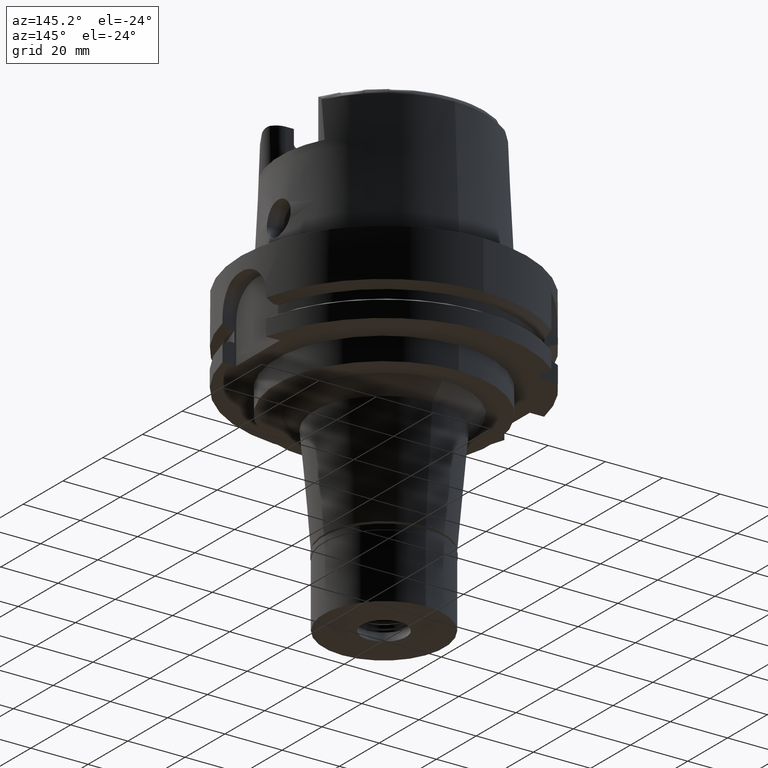
[diagram: clean part render]
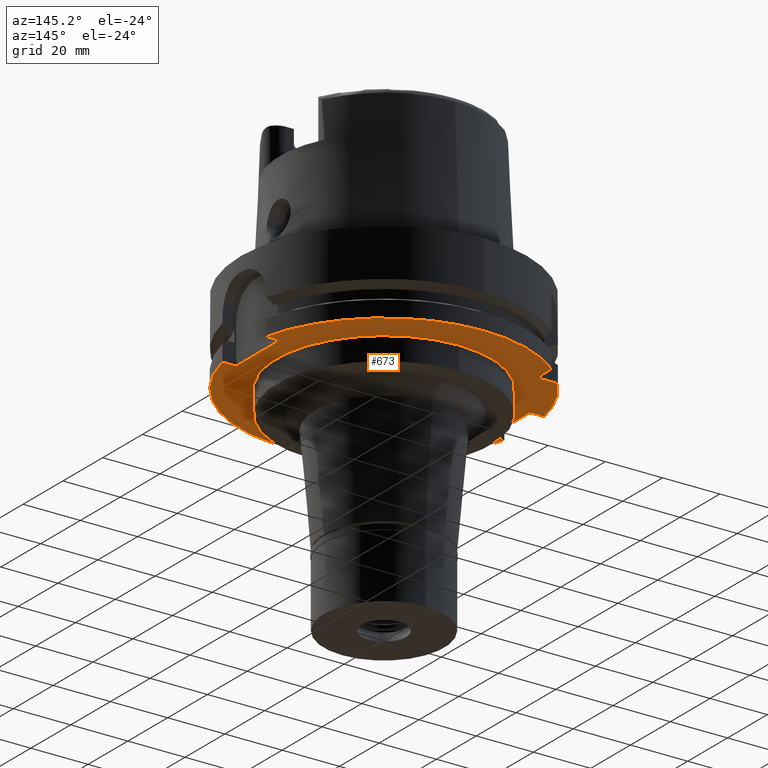
[diagram: same view with one face highlighted and labeled with its STEP entity id]
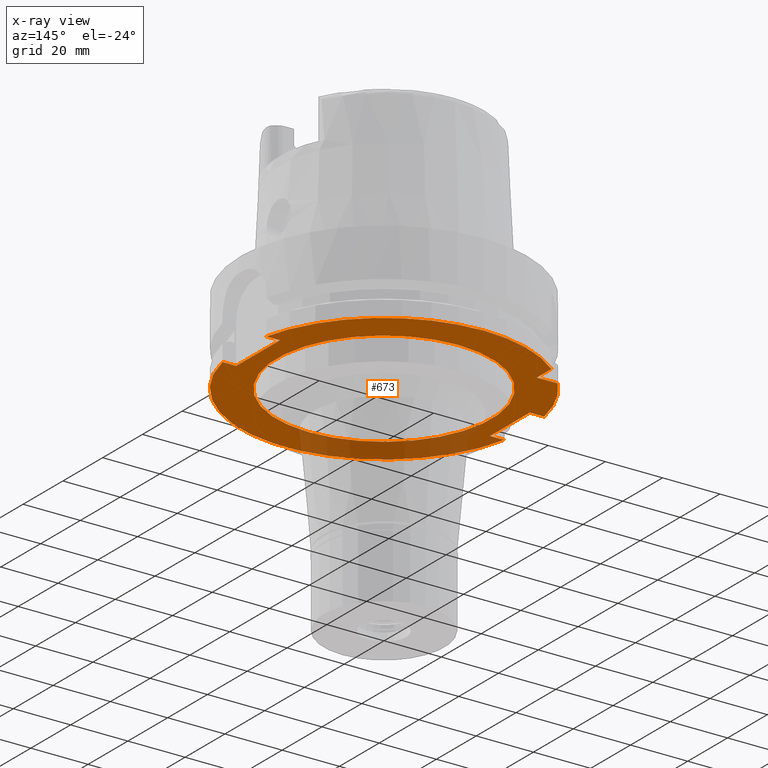
[diagram: x-ray of the same camera — body ghosted, the highlighted face saturated]
A machine part, auxiliary view. The second image highlights one B-rep face of the part: STEP entity #673.
The next image is the same camera in x-ray: the body ghosted, the highlighted face saturated — about 21% of this face is hidden behind the body in this view.
In plain terms, the highlighted planar face has unit normal (0, 0, 1).
Its self-contained STEP definition (entity closure, byte-faithful):
#51 = CARTESIAN_POINT ( 'NONE',  ( 48.77499359303000404, -11.00000000000000000, -29.00000000000000000 ) ) ;
#269 = AXIS2_PLACEMENT_3D ( 'NONE', #2829, #693, #1594 ) ;
#273 = PLANE ( 'NONE',  #3957 ) ;
#299 = FACE_OUTER_BOUND ( 'NONE', #4570, .T. ) ;
#395 = DIRECTION ( 'NONE',  ( 0.0000000000000000000, 0.0000000000000000000, 1.000000000000000000 ) ) ;
#451 = CIRCLE ( 'NONE', #269, 37.50000000000000000 ) ;
#490 = ORIENTED_EDGE ( 'NONE', *, *, #5322, .F. ) ;
#510 = VERTEX_POINT ( 'NONE', #5427 ) ;
#530 = EDGE_CURVE ( 'NONE', #4006, #4961, #1073, .T. ) ;
#553 = CARTESIAN_POINT ( 'NONE',  ( -44.00000000000000000, 10.00000000000000000, -29.00000000000000000 ) ) ;
#656 = CARTESIAN_POINT ( 'NONE',  ( -44.00000000000000000, -10.00000000000000000, -29.00000000000000000 ) ) ;
#673 = ADVANCED_FACE ( 'NONE', ( #299, #2915 ), #273, .F. ) ;
#693 = DIRECTION ( 'NONE',  ( 0.0000000000000000000, 0.0000000000000000000, -1.000000000000000000 ) ) ;
#697 = CARTESIAN_POINT ( 'NONE',  ( -44.00000000000000000, -10.00000000000000000, -29.00000000000000000 ) ) ;
#701 = EDGE_CURVE ( 'NONE', #3279, #1275, #451, .T. ) ;
#713 = LINE ( 'NONE', #656, #4839 ) ;
#763 = EDGE_CURVE ( 'NONE', #2494, #4006, #3426, .T. ) ;
#827 = LINE ( 'NONE', #2539, #1915 ) ;
#855 = DIRECTION ( 'NONE',  ( 1.000000000000000000, 1.711257052401000108E-14, 0.0000000000000000000 ) ) ;
#957 = VERTEX_POINT ( 'NONE', #5046 ) ;
#1073 = CIRCLE ( 'NONE', #1349, 50.00000000000000000 ) ;
#1086 = CARTESIAN_POINT ( 'NONE',  ( -31.50000000000000000, 31.50000000000000000, -29.00000000000000000 ) ) ;
#1090 = LINE ( 'NONE', #4980, #3594 ) ;
#1104 = VECTOR ( 'NONE', #4105, 1000.000000000000000 ) ;
#1139 = EDGE_CURVE ( 'NONE', #3569, #4961, #1090, .T. ) ;
#1166 = CARTESIAN_POINT ( 'NONE',  ( 0.0000000000000000000, 0.0000000000000000000, -29.00000000000000000 ) ) ;
#1187 = DIRECTION ( 'NONE',  ( 0.0000000000000000000, 0.0000000000000000000, 1.000000000000000000 ) ) ;
#1239 = ORIENTED_EDGE ( 'NONE', *, *, #3534, .T. ) ;
#1275 = VERTEX_POINT ( 'NONE', #4258 ) ;
#1336 = DIRECTION ( 'NONE',  ( 0.0000000000000000000, 0.0000000000000000000, 1.000000000000000000 ) ) ;
#1349 = AXIS2_PLACEMENT_3D ( 'NONE', #2522, #2491, #5025 ) ;
#1376 = VERTEX_POINT ( 'NONE', #4802 ) ;
#1576 = AXIS2_PLACEMENT_3D ( 'NONE', #1166, #395, #2919 ) ;
#1594 = DIRECTION ( 'NONE',  ( 0.0000000000000000000, 1.000000000000000000, 0.0000000000000000000 ) ) ;
#1703 = VECTOR ( 'NONE', #2606, 1000.000000000000000 ) ;
#1753 = CARTESIAN_POINT ( 'NONE',  ( -31.50000000000000000, 38.82975663071000128, -29.00000000000000000 ) ) ;
#1757 = CIRCLE ( 'NONE', #1576, 50.00000000000000711 ) ;
#1848 = ORIENTED_EDGE ( 'NONE', *, *, #763, .F. ) ;
#1911 = ORIENTED_EDGE ( 'NONE', *, *, #3792, .F. ) ;
#1915 = VECTOR ( 'NONE', #855, 1000.000000000000000 ) ;
#1935 = VERTEX_POINT ( 'NONE', #2864 ) ;
#2010 = VECTOR ( 'NONE', #2860, 1000.000000000000000 ) ;
#2013 = VECTOR ( 'NONE', #4692, 1000.000000000000000 ) ;
#2021 = VECTOR ( 'NONE', #4824, 1000.000000000000000 ) ;
#2068 = DIRECTION ( 'NONE',  ( 1.000000000000000000, 0.0000000000000000000, 0.0000000000000000000 ) ) ;
#2237 = LINE ( 'NONE', #553, #2021 ) ;
#2243 = VERTEX_POINT ( 'NONE', #3460 ) ;
#2255 = DIRECTION ( 'NONE',  ( 0.0000000000000000000, -1.000000000000000000, 0.0000000000000000000 ) ) ;
#2383 = CARTESIAN_POINT ( 'NONE',  ( 44.00000000000000000, 11.00000000000000000, -29.00000000000000000 ) ) ;
#2385 = DIRECTION ( 'NONE',  ( 4.798503851105999980E-14, 1.000000000000000000, 0.0000000000000000000 ) ) ;
#2410 = ORIENTED_EDGE ( 'NONE', *, *, #4184, .T. ) ;
#2491 = DIRECTION ( 'NONE',  ( 0.0000000000000000000, 0.0000000000000000000, 1.000000000000000000 ) ) ;
#2494 = VERTEX_POINT ( 'NONE', #3040 ) ;
#2522 = CARTESIAN_POINT ( 'NONE',  ( 0.0000000000000000000, 0.0000000000000000000, -29.00000000000000000 ) ) ;
#2539 = CARTESIAN_POINT ( 'NONE',  ( 44.00000000000000000, -11.00000000000000000, -29.00000000000000000 ) ) ;
#2549 = CIRCLE ( 'NONE', #3356, 50.00000000000000000 ) ;
#2555 = VERTEX_POINT ( 'NONE', #51 ) ;
#2606 = DIRECTION ( 'NONE',  ( 1.000000000000000000, -1.785659532940000023E-14, 0.0000000000000000000 ) ) ;
#2738 = AXIS2_PLACEMENT_3D ( 'NONE', #4558, #5500, #4966 ) ;
#2829 = CARTESIAN_POINT ( 'NONE',  ( 0.0000000000000000000, 0.0000000000000000000, -29.00000000000000000 ) ) ;
#2842 = ORIENTED_EDGE ( 'NONE', *, *, #3581, .T. ) ;
#2860 = DIRECTION ( 'NONE',  ( 0.0000000000000000000, 1.000000000000000000, 0.0000000000000000000 ) ) ;
#2864 = CARTESIAN_POINT ( 'NONE',  ( 44.00000000000000000, -11.00000000000000000, -29.00000000000000000 ) ) ;
#2915 = FACE_BOUND ( 'NONE', #2949, .T. ) ;
#2919 = DIRECTION ( 'NONE',  ( -0.7765951326141738997, 0.6299999999999789102, 0.0000000000000000000 ) ) ;
#2949 = EDGE_LOOP ( 'NONE', ( #4356, #1911 ) ) ;
#2963 = CARTESIAN_POINT ( 'NONE',  ( -31.50000000000000000, 31.50000000000000000, -29.00000000000000000 ) ) ;
#3040 = CARTESIAN_POINT ( 'NONE',  ( 44.00000000000000000, 11.00000000000000000, -29.00000000000000000 ) ) ;
#3076 = CARTESIAN_POINT ( 'NONE',  ( 0.0000000000000000000, 37.50000000000000000, -29.00000000000000000 ) ) ;
#3090 = CARTESIAN_POINT ( 'NONE',  ( 44.00000000000000000, 11.00000000000000000, -29.00000000000000000 ) ) ;
#3258 = LINE ( 'NONE', #697, #2010 ) ;
#3259 = VERTEX_POINT ( 'NONE', #3804 ) ;
#3279 = VERTEX_POINT ( 'NONE', #3076 ) ;
#3356 = AXIS2_PLACEMENT_3D ( 'NONE', #4004, #1336, #2255 ) ;
#3378 = LINE ( 'NONE', #2963, #2013 ) ;
#3426 = LINE ( 'NONE', #3090, #1703 ) ;
#3460 = CARTESIAN_POINT ( 'NONE',  ( -48.98979485565999425, -10.00000000000000000, -29.00000000000000000 ) ) ;
#3534 = EDGE_CURVE ( 'NONE', #957, #510, #3258, .T. ) ;
#3569 = VERTEX_POINT ( 'NONE', #1086 ) ;
#3581 = EDGE_CURVE ( 'NONE', #2494, #1935, #4532, .T. ) ;
#3594 = VECTOR ( 'NONE', #2385, 1000.000000000000000 ) ;
#3695 = ORIENTED_EDGE ( 'NONE', *, *, #1139, .T. ) ;
#3766 = ORIENTED_EDGE ( 'NONE', *, *, #4638, .T. ) ;
#3792 = EDGE_CURVE ( 'NONE', #1275, #3279, #4642, .T. ) ;
#3804 = CARTESIAN_POINT ( 'NONE',  ( -38.82975663071000128, 31.50000000000000000, -29.00000000000000000 ) ) ;
#3957 = AXIS2_PLACEMENT_3D ( 'NONE', #5082, #1187, #2068 ) ;
#4004 = CARTESIAN_POINT ( 'NONE',  ( 0.0000000000000000000, 0.0000000000000000000, -29.00000000000000000 ) ) ;
#4006 = VERTEX_POINT ( 'NONE', #4647 ) ;
#4105 = DIRECTION ( 'NONE',  ( 0.0000000000000000000, -1.000000000000000000, 0.0000000000000000000 ) ) ;
#4184 = EDGE_CURVE ( 'NONE', #510, #1376, #2237, .T. ) ;
#4258 = CARTESIAN_POINT ( 'NONE',  ( 0.0000000000000000000, -37.50000000000000000, -29.00000000000000000 ) ) ;
#4356 = ORIENTED_EDGE ( 'NONE', *, *, #701, .F. ) ;
#4361 = ORIENTED_EDGE ( 'NONE', *, *, #5548, .F. ) ;
#4389 = ORIENTED_EDGE ( 'NONE', *, *, #4909, .F. ) ;
#4531 = EDGE_CURVE ( 'NONE', #957, #2243, #713, .T. ) ;
#4532 = LINE ( 'NONE', #2383, #1104 ) ;
#4558 = CARTESIAN_POINT ( 'NONE',  ( 0.0000000000000000000, 0.0000000000000000000, -29.00000000000000000 ) ) ;
#4570 = EDGE_LOOP ( 'NONE', ( #5154, #1848, #2842, #3766, #4389, #4857, #1239, #2410, #4361, #490, #3695 ) ) ;
#4582 = DIRECTION ( 'NONE',  ( -1.000000000000000000, -4.627973610177000155E-14, 0.0000000000000000000 ) ) ;
#4638 = EDGE_CURVE ( 'NONE', #1935, #2555, #827, .T. ) ;
#4642 = CIRCLE ( 'NONE', #2738, 37.50000000000000000 ) ;
#4647 = CARTESIAN_POINT ( 'NONE',  ( 48.77499359303000404, 11.00000000000000000, -29.00000000000000000 ) ) ;
#4692 = DIRECTION ( 'NONE',  ( -1.000000000000000000, -4.798503851105999980E-14, 0.0000000000000000000 ) ) ;
#4802 = CARTESIAN_POINT ( 'NONE',  ( -48.98979485565999425, 10.00000000000000000, -29.00000000000000000 ) ) ;
#4824 = DIRECTION ( 'NONE',  ( -1.000000000000000000, 4.627973610177000155E-14, 0.0000000000000000000 ) ) ;
#4839 = VECTOR ( 'NONE', #4582, 1000.000000000000000 ) ;
#4857 = ORIENTED_EDGE ( 'NONE', *, *, #4531, .F. ) ;
#4909 = EDGE_CURVE ( 'NONE', #2243, #2555, #2549, .T. ) ;
#4961 = VERTEX_POINT ( 'NONE', #1753 ) ;
#4966 = DIRECTION ( 'NONE',  ( 0.0000000000000000000, -1.000000000000000000, 0.0000000000000000000 ) ) ;
#4980 = CARTESIAN_POINT ( 'NONE',  ( -31.50000000000000000, 31.50000000000000000, -29.00000000000000000 ) ) ;
#5025 = DIRECTION ( 'NONE',  ( 0.0000000000000000000, 1.000000000000000000, 0.0000000000000000000 ) ) ;
#5046 = CARTESIAN_POINT ( 'NONE',  ( -44.00000000000000000, -10.00000000000000000, -29.00000000000000000 ) ) ;
#5082 = CARTESIAN_POINT ( 'NONE',  ( 0.0000000000000000000, 0.0000000000000000000, -29.00000000000000000 ) ) ;
#5154 = ORIENTED_EDGE ( 'NONE', *, *, #530, .F. ) ;
#5322 = EDGE_CURVE ( 'NONE', #3569, #3259, #3378, .T. ) ;
#5427 = CARTESIAN_POINT ( 'NONE',  ( -44.00000000000000000, 10.00000000000000000, -29.00000000000000000 ) ) ;
#5500 = DIRECTION ( 'NONE',  ( 0.0000000000000000000, 0.0000000000000000000, -1.000000000000000000 ) ) ;
#5548 = EDGE_CURVE ( 'NONE', #3259, #1376, #1757, .T. ) ;